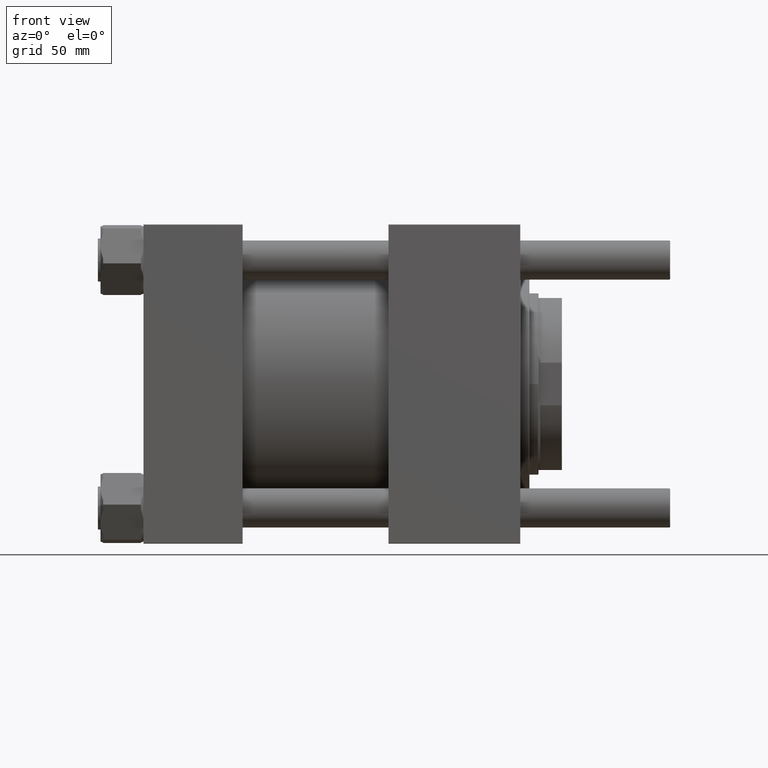
[diagram: clean part render]
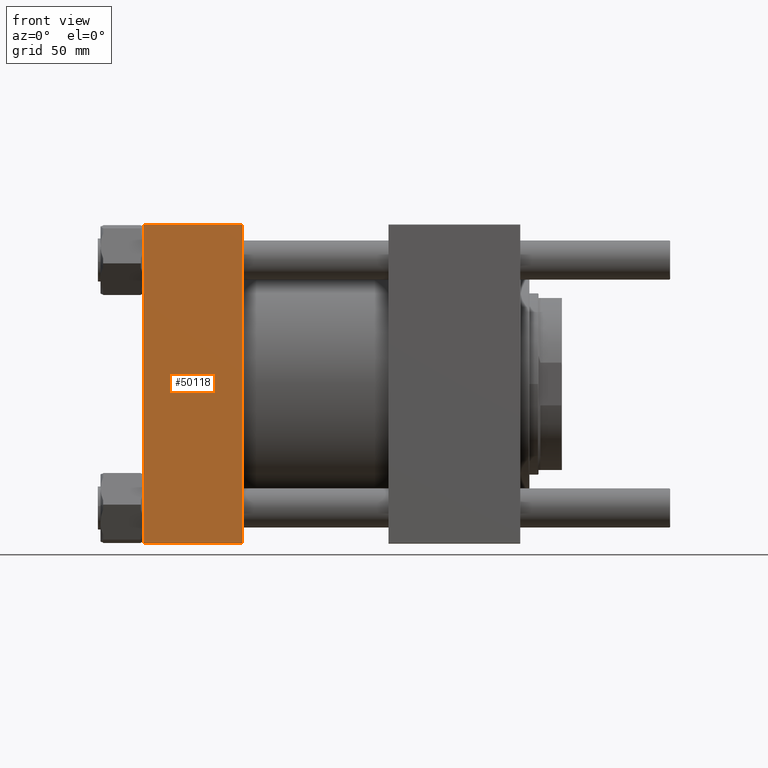
[diagram: same view with one face highlighted and labeled with its STEP entity id]
A machine part, front view. The second image highlights one B-rep face of the part: STEP entity #50118.
In plain terms, the highlighted planar face has unit normal (0, 1, -0).
Its self-contained STEP definition (entity closure, byte-faithful):
#45 = CARTESIAN_POINT ( 'NONE',  ( 76.00000000000000000, -122.5000000000000000, -122.0000000000000568 ) ) ;
#449 = DIRECTION ( 'NONE',  ( 0.000000000000000000, 1.000000000000000000, -1.132880637372608493E-16 ) ) ;
#536 = VERTEX_POINT ( 'NONE', #43901 ) ;
#2242 = EDGE_CURVE ( 'NONE', #44630, #45736, #50520, .T. ) ;
#3067 = CARTESIAN_POINT ( 'NONE',  ( 76.00000000000000000, -122.5000000000000000, -122.0000000000000568 ) ) ;
#3556 = CARTESIAN_POINT ( 'NONE',  ( 0.000000000000000000, -122.4999999999999716, 122.0000000000001137 ) ) ;
#8695 = CARTESIAN_POINT ( 'NONE',  ( 76.00000000000000000, -122.4999999999999716, 122.0000000000001137 ) ) ;
#13202 = DIRECTION ( 'NONE',  ( 0.000000000000000000, 1.132880637372608493E-16, 1.000000000000000000 ) ) ;
#13450 = VECTOR ( 'NONE', #23441, 1000.000000000000000 ) ;
#13603 = LINE ( 'NONE', #8695, #18002 ) ;
#14584 = AXIS2_PLACEMENT_3D ( 'NONE', #47931, #449, #13202 ) ;
#17266 = PLANE ( 'NONE',  #14584 ) ;
#18002 = VECTOR ( 'NONE', #35887, 1000.000000000000000 ) ;
#18080 = ORIENTED_EDGE ( 'NONE', *, *, #51223, .F. ) ;
#19351 = ORIENTED_EDGE ( 'NONE', *, *, #23032, .T. ) ;
#22872 = CARTESIAN_POINT ( 'NONE',  ( 0.000000000000000000, -122.4999999999999716, 122.5000000000000000 ) ) ;
#23032 = EDGE_CURVE ( 'NONE', #47736, #44630, #40510, .T. ) ;
#23441 = DIRECTION ( 'NONE',  ( 0.000000000000000000, -1.132880637372608493E-16, -1.000000000000000000 ) ) ;
#24141 = CARTESIAN_POINT ( 'NONE',  ( 0.000000000000000000, -122.5000000000000000, -122.0000000000000568 ) ) ;
#26360 = EDGE_CURVE ( 'NONE', #536, #47736, #13603, .T. ) ;
#26743 = DIRECTION ( 'NONE',  ( 0.000000000000000000, -1.132880637372608493E-16, -1.000000000000000000 ) ) ;
#27578 = VECTOR ( 'NONE', #26743, 1000.000000000000000 ) ;
#35887 = DIRECTION ( 'NONE',  ( -1.000000000000000000, 0.000000000000000000, 0.000000000000000000 ) ) ;
#37954 = ORIENTED_EDGE ( 'NONE', *, *, #26360, .T. ) ;
#38995 = EDGE_LOOP ( 'NONE', ( #19351, #44697, #18080, #37954 ) ) ;
#40510 = LINE ( 'NONE', #22872, #13450 ) ;
#43901 = CARTESIAN_POINT ( 'NONE',  ( 76.00000000000000000, -122.4999999999999716, 122.0000000000001137 ) ) ;
#44630 = VERTEX_POINT ( 'NONE', #24141 ) ;
#44697 = ORIENTED_EDGE ( 'NONE', *, *, #2242, .T. ) ;
#45736 = VERTEX_POINT ( 'NONE', #45 ) ;
#45838 = VECTOR ( 'NONE', #51085, 1000.000000000000000 ) ;
#47736 = VERTEX_POINT ( 'NONE', #3556 ) ;
#47931 = CARTESIAN_POINT ( 'NONE',  ( 76.00000000000000000, -122.4999999999999716, 122.5000000000000000 ) ) ;
#48714 = CARTESIAN_POINT ( 'NONE',  ( 76.00000000000000000, -122.4999999999999716, 122.5000000000000000 ) ) ;
#50118 = ADVANCED_FACE ( 'NONE', ( #52827 ), #17266, .F. ) ;
#50520 = LINE ( 'NONE', #3067, #45838 ) ;
#51085 = DIRECTION ( 'NONE',  ( 1.000000000000000000, 0.000000000000000000, 0.000000000000000000 ) ) ;
#51223 = EDGE_CURVE ( 'NONE', #536, #45736, #52750, .T. ) ;
#52750 = LINE ( 'NONE', #48714, #27578 ) ;
#52827 = FACE_OUTER_BOUND ( 'NONE', #38995, .T. ) ;